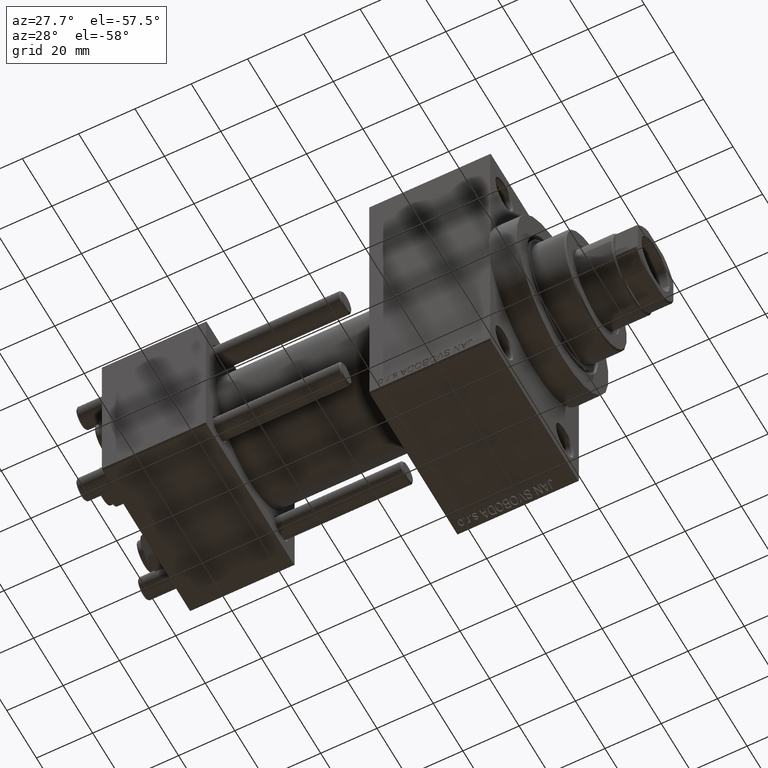
[diagram: clean part render]
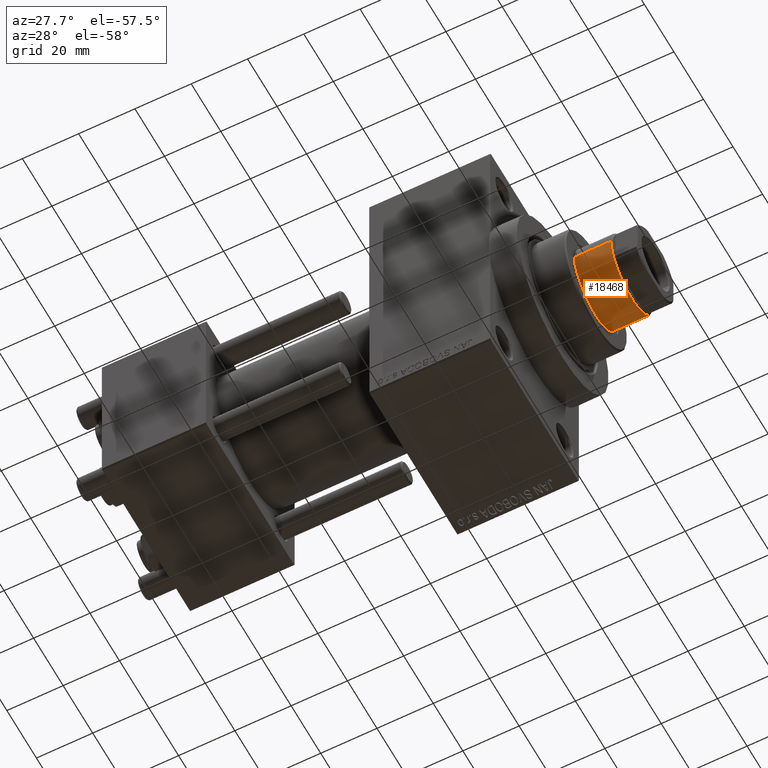
[diagram: same view with one face highlighted and labeled with its STEP entity id]
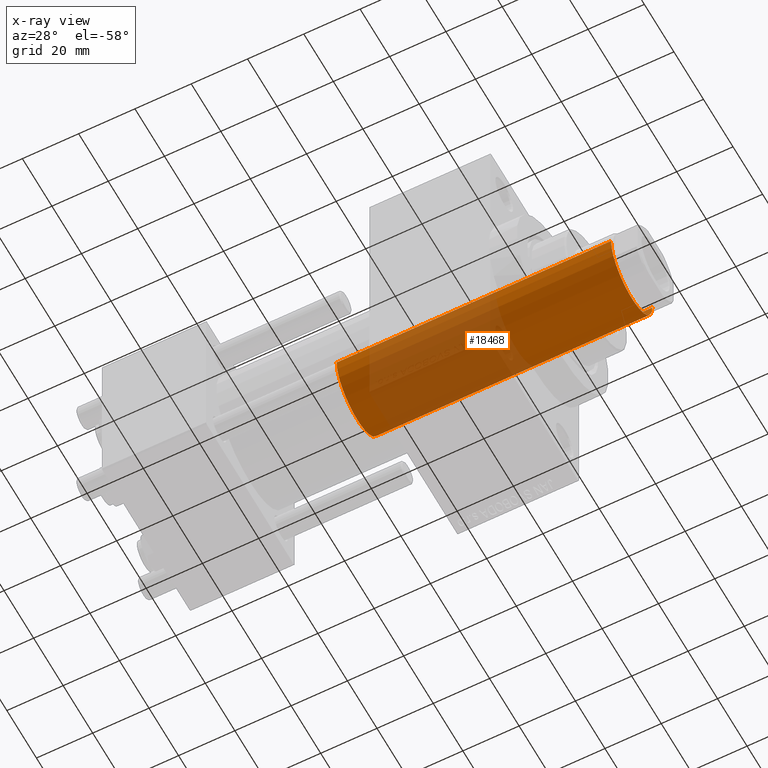
[diagram: x-ray of the same camera — body ghosted, the highlighted face saturated]
A machine part, auxiliary view. The second image highlights one B-rep face of the part: STEP entity #18468.
The next image is the same camera in x-ray: the body ghosted, the highlighted face saturated — about 49% of this face is hidden behind the body in this view.
In plain terms, the highlighted cylindrical surface (partial cylindrical patch) has radius 14 mm, axis along (-1, 0, 0).
Its self-contained STEP definition (entity closure, byte-faithful):
#779 = LINE ( 'NONE', #15679, #16757 ) ;
#842 = EDGE_CURVE ( 'NONE', #22899, #27076, #23117, .T. ) ;
#1553 = DIRECTION ( 'NONE',  ( 0.000000000000000000, 0.000000000000000000, 1.000000000000000000 ) ) ;
#2199 = DIRECTION ( 'NONE',  ( -0.000000000000000000, -0.000000000000000000, -1.000000000000000000 ) ) ;
#4318 = DIRECTION ( 'NONE',  ( 1.000000000000000000, 0.000000000000000000, 0.000000000000000000 ) ) ;
#5873 = CYLINDRICAL_SURFACE ( 'NONE', #9627, 14.00000000000000178 ) ;
#6301 = EDGE_CURVE ( 'NONE', #16203, #30790, #31917, .T. ) ;
#6342 = LINE ( 'NONE', #21232, #7507 ) ;
#6925 = CARTESIAN_POINT ( 'NONE',  ( 14.00000000000000178, 1.714505518806294835E-15, 135.5000000000000284 ) ) ;
#7507 = VECTOR ( 'NONE', #2199, 1000.000000000000000 ) ;
#7515 = CARTESIAN_POINT ( 'NONE',  ( -14.00000000000000178, 0.000000000000000000, 38.00000000000000000 ) ) ;
#7740 = AXIS2_PLACEMENT_3D ( 'NONE', #25950, #22775, #15461 ) ;
#9292 = CARTESIAN_POINT ( 'NONE',  ( 0.000000000000000000, 0.000000000000000000, 136.0000000000000000 ) ) ;
#9627 = AXIS2_PLACEMENT_3D ( 'NONE', #9292, #16854, #42704 ) ;
#13741 = EDGE_LOOP ( 'NONE', ( #28340, #40695, #21602, #31706 ) ) ;
#14204 = CARTESIAN_POINT ( 'NONE',  ( 14.00000000000000178, 1.714505518806294835E-15, 38.00000000000000000 ) ) ;
#15461 = DIRECTION ( 'NONE',  ( 1.000000000000000000, 0.000000000000000000, 0.000000000000000000 ) ) ;
#15679 = CARTESIAN_POINT ( 'NONE',  ( 14.00000000000000178, 1.714505518806294835E-15, 136.0000000000000000 ) ) ;
#16203 = VERTEX_POINT ( 'NONE', #41110 ) ;
#16757 = VECTOR ( 'NONE', #44213, 1000.000000000000000 ) ;
#16854 = DIRECTION ( 'NONE',  ( -0.000000000000000000, -0.000000000000000000, -1.000000000000000000 ) ) ;
#18468 = ADVANCED_FACE ( 'NONE', ( #27840 ), #5873, .T. ) ;
#18967 = CARTESIAN_POINT ( 'NONE',  ( 0.000000000000000000, 0.000000000000000000, 38.00000000000000000 ) ) ;
#21232 = CARTESIAN_POINT ( 'NONE',  ( -14.00000000000000178, 0.000000000000000000, 136.0000000000000000 ) ) ;
#21602 = ORIENTED_EDGE ( 'NONE', *, *, #842, .T. ) ;
#22775 = DIRECTION ( 'NONE',  ( 0.000000000000000000, 0.000000000000000000, -1.000000000000000000 ) ) ;
#22899 = VERTEX_POINT ( 'NONE', #14204 ) ;
#23117 = CIRCLE ( 'NONE', #27782, 14.00000000000000178 ) ;
#25950 = CARTESIAN_POINT ( 'NONE',  ( 0.000000000000000000, 0.000000000000000000, 135.5000000000000284 ) ) ;
#26605 = EDGE_CURVE ( 'NONE', #30790, #22899, #779, .T. ) ;
#27076 = VERTEX_POINT ( 'NONE', #7515 ) ;
#27782 = AXIS2_PLACEMENT_3D ( 'NONE', #18967, #1553, #4318 ) ;
#27840 = FACE_OUTER_BOUND ( 'NONE', #13741, .T. ) ;
#28340 = ORIENTED_EDGE ( 'NONE', *, *, #6301, .T. ) ;
#30790 = VERTEX_POINT ( 'NONE', #6925 ) ;
#31706 = ORIENTED_EDGE ( 'NONE', *, *, #33595, .F. ) ;
#31917 = CIRCLE ( 'NONE', #7740, 14.00000000000000178 ) ;
#33595 = EDGE_CURVE ( 'NONE', #16203, #27076, #6342, .T. ) ;
#40695 = ORIENTED_EDGE ( 'NONE', *, *, #26605, .T. ) ;
#41110 = CARTESIAN_POINT ( 'NONE',  ( -14.00000000000000178, 0.000000000000000000, 135.5000000000000284 ) ) ;
#42704 = DIRECTION ( 'NONE',  ( -1.000000000000000000, 0.000000000000000000, 0.000000000000000000 ) ) ;
#44213 = DIRECTION ( 'NONE',  ( -0.000000000000000000, -0.000000000000000000, -1.000000000000000000 ) ) ;